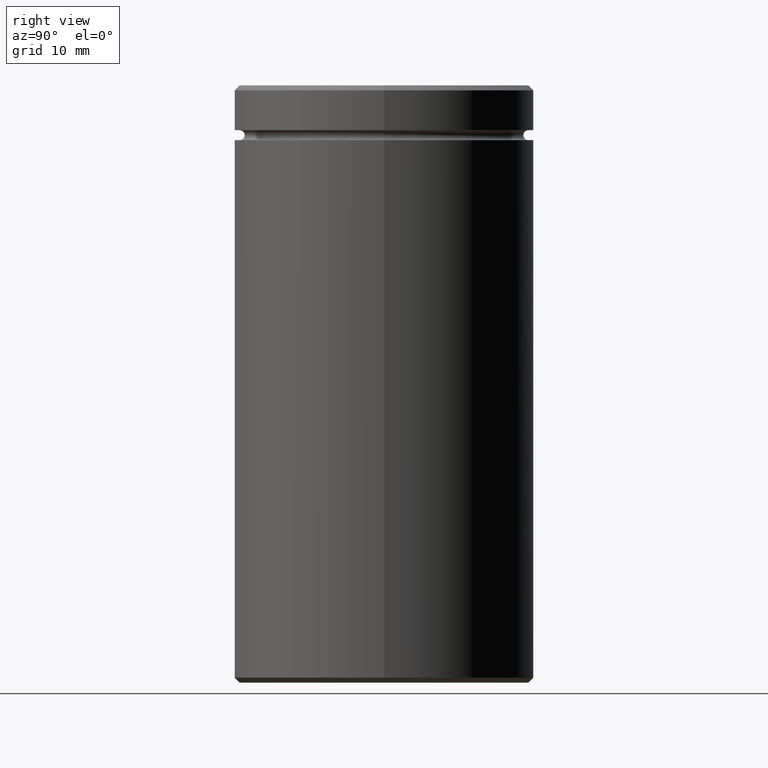
[diagram: clean part render]
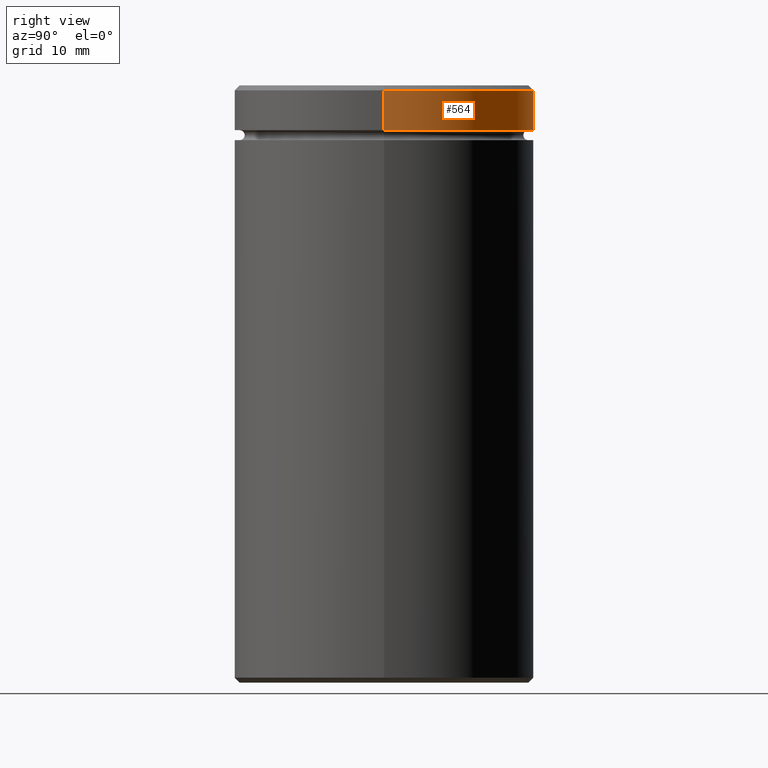
[diagram: same view with one face highlighted and labeled with its STEP entity id]
A machine part, right view. The second image highlights one B-rep face of the part: STEP entity #564.
In plain terms, the highlighted cylindrical surface (partial cylindrical patch) has radius 15 mm, axis along (-0, -0, 1).
Its self-contained STEP definition (entity closure, byte-faithful):
#5 = LINE ( 'NONE', #181, #174 ) ;
#22 = ORIENTED_EDGE ( 'NONE', *, *, #220, .F. ) ;
#33 = LINE ( 'NONE', #427, #423 ) ;
#44 = AXIS2_PLACEMENT_3D ( 'NONE', #481, #349, #167 ) ;
#62 = AXIS2_PLACEMENT_3D ( 'NONE', #562, #525, #522 ) ;
#95 = CYLINDRICAL_SURFACE ( 'NONE', #222, 15.00000000000000000 ) ;
#111 = DIRECTION ( 'NONE',  ( -0.000000000000000000, -0.000000000000000000, 1.000000000000000000 ) ) ;
#138 = DIRECTION ( 'NONE',  ( 1.000000000000000000, 0.000000000000000000, 0.000000000000000000 ) ) ;
#140 = DIRECTION ( 'NONE',  ( -0.000000000000000000, -0.000000000000000000, 1.000000000000000000 ) ) ;
#148 = CIRCLE ( 'NONE', #44, 15.00000000000000000 ) ;
#162 = CARTESIAN_POINT ( 'NONE',  ( 15.00000000000000000, 0.000000000000000000, -4.500000000000000888 ) ) ;
#167 = DIRECTION ( 'NONE',  ( 1.000000000000000000, 0.000000000000000000, 0.000000000000000000 ) ) ;
#172 = CARTESIAN_POINT ( 'NONE',  ( 0.000000000000000000, 0.000000000000000000, 0.000000000000000000 ) ) ;
#174 = VECTOR ( 'NONE', #111, 1000.000000000000000 ) ;
#181 = CARTESIAN_POINT ( 'NONE',  ( -15.00000000000000000, 1.836970198721029589E-15, 0.000000000000000000 ) ) ;
#193 = VERTEX_POINT ( 'NONE', #194 ) ;
#194 = CARTESIAN_POINT ( 'NONE',  ( 15.00000000000000000, 0.000000000000000000, -0.5000000000000038858 ) ) ;
#218 = VERTEX_POINT ( 'NONE', #555 ) ;
#220 = EDGE_CURVE ( 'NONE', #242, #193, #33, .T. ) ;
#222 = AXIS2_PLACEMENT_3D ( 'NONE', #172, #140, #138 ) ;
#242 = VERTEX_POINT ( 'NONE', #162 ) ;
#332 = VERTEX_POINT ( 'NONE', #532 ) ;
#349 = DIRECTION ( 'NONE',  ( 0.000000000000000000, 0.000000000000000000, -1.000000000000000000 ) ) ;
#351 = EDGE_CURVE ( 'NONE', #332, #218, #5, .T. ) ;
#408 = ORIENTED_EDGE ( 'NONE', *, *, #521, .T. ) ;
#423 = VECTOR ( 'NONE', #524, 1000.000000000000000 ) ;
#427 = CARTESIAN_POINT ( 'NONE',  ( 15.00000000000000000, 0.000000000000000000, 0.000000000000000000 ) ) ;
#428 = ORIENTED_EDGE ( 'NONE', *, *, #511, .T. ) ;
#436 = CIRCLE ( 'NONE', #62, 15.00000000000000000 ) ;
#458 = ORIENTED_EDGE ( 'NONE', *, *, #351, .T. ) ;
#481 = CARTESIAN_POINT ( 'NONE',  ( 0.000000000000000000, 0.000000000000000000, -0.5000000000000038858 ) ) ;
#483 = FACE_OUTER_BOUND ( 'NONE', #513, .T. ) ;
#511 = EDGE_CURVE ( 'NONE', #218, #193, #148, .T. ) ;
#513 = EDGE_LOOP ( 'NONE', ( #408, #458, #428, #22 ) ) ;
#521 = EDGE_CURVE ( 'NONE', #242, #332, #436, .T. ) ;
#522 = DIRECTION ( 'NONE',  ( 1.000000000000000000, 0.000000000000000000, 0.000000000000000000 ) ) ;
#524 = DIRECTION ( 'NONE',  ( -0.000000000000000000, -0.000000000000000000, 1.000000000000000000 ) ) ;
#525 = DIRECTION ( 'NONE',  ( -0.000000000000000000, -0.000000000000000000, 1.000000000000000000 ) ) ;
#532 = CARTESIAN_POINT ( 'NONE',  ( -15.00000000000000000, 1.836970198721029589E-15, -4.500000000000000888 ) ) ;
#555 = CARTESIAN_POINT ( 'NONE',  ( -15.00000000000000000, 1.836970198721029589E-15, -0.5000000000000038858 ) ) ;
#562 = CARTESIAN_POINT ( 'NONE',  ( 0.000000000000000000, 0.000000000000000000, -4.500000000000000888 ) ) ;
#564 = ADVANCED_FACE ( 'NONE', ( #483 ), #95, .T. ) ;